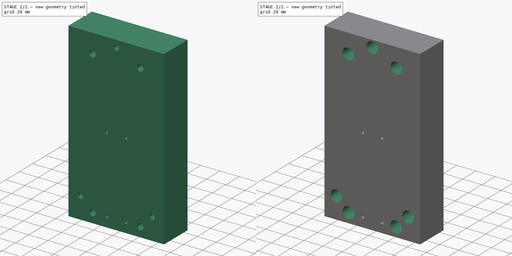
[diagram: build sequence overview — one tinted view per stage of 2, left to right]
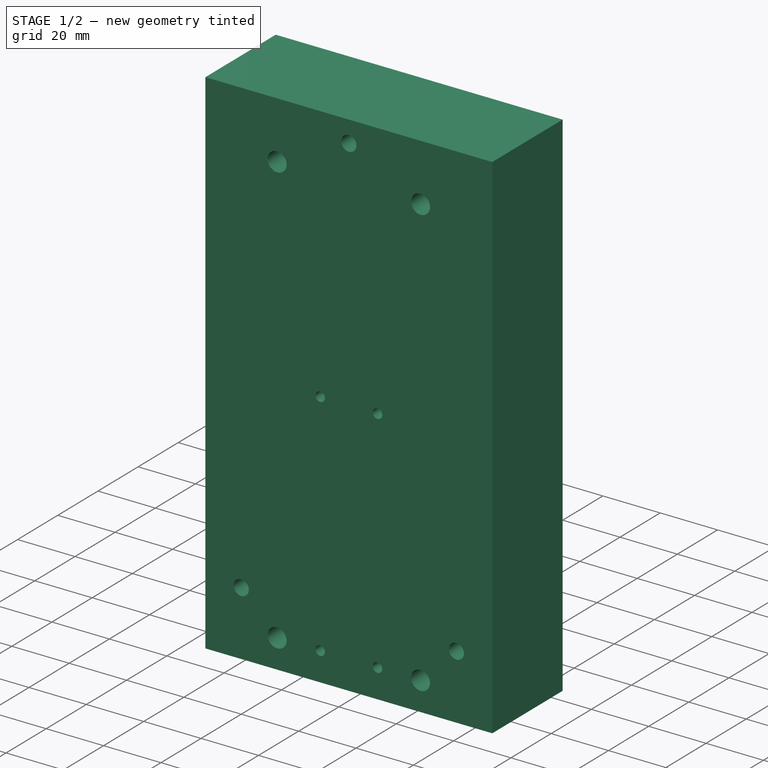
[diagram: stage 1 of 2 — iso view after this stage's code; geometry added in this stage tinted green]
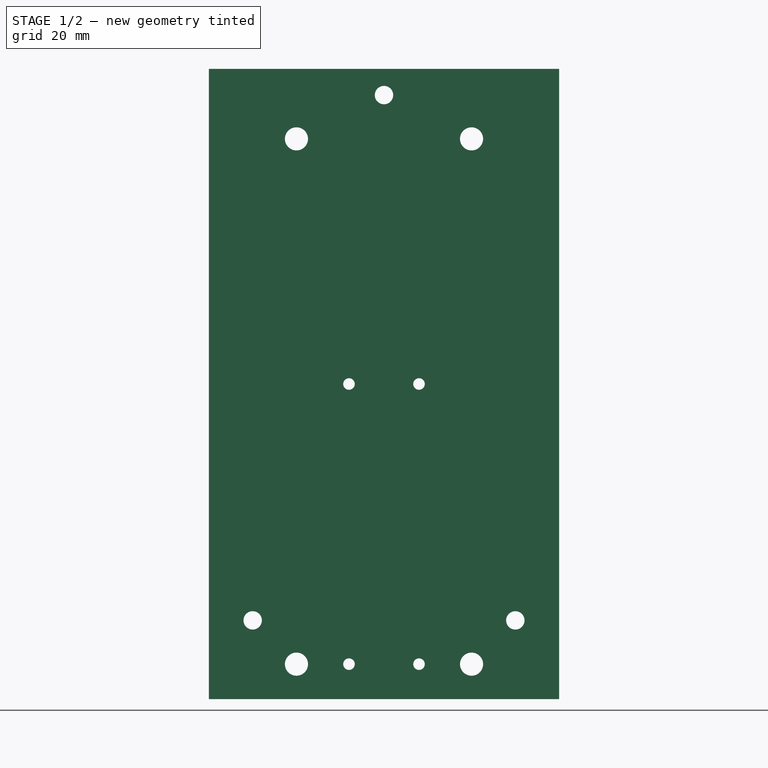
[diagram: stage 1 of 2 — front view after this stage's code; geometry added in this stage tinted green]
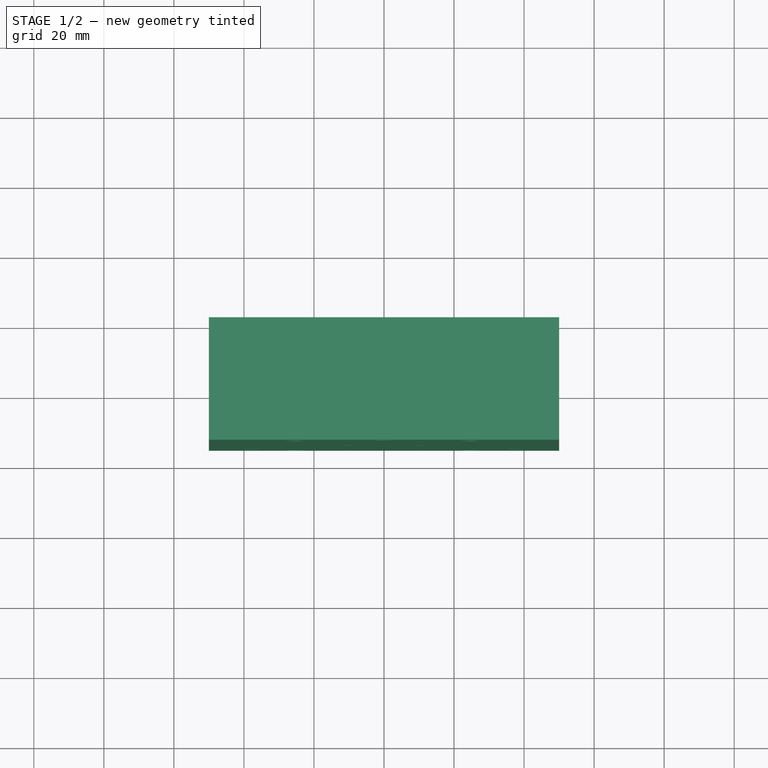
[diagram: stage 1 of 2 — top view after this stage's code; geometry added in this stage tinted green]
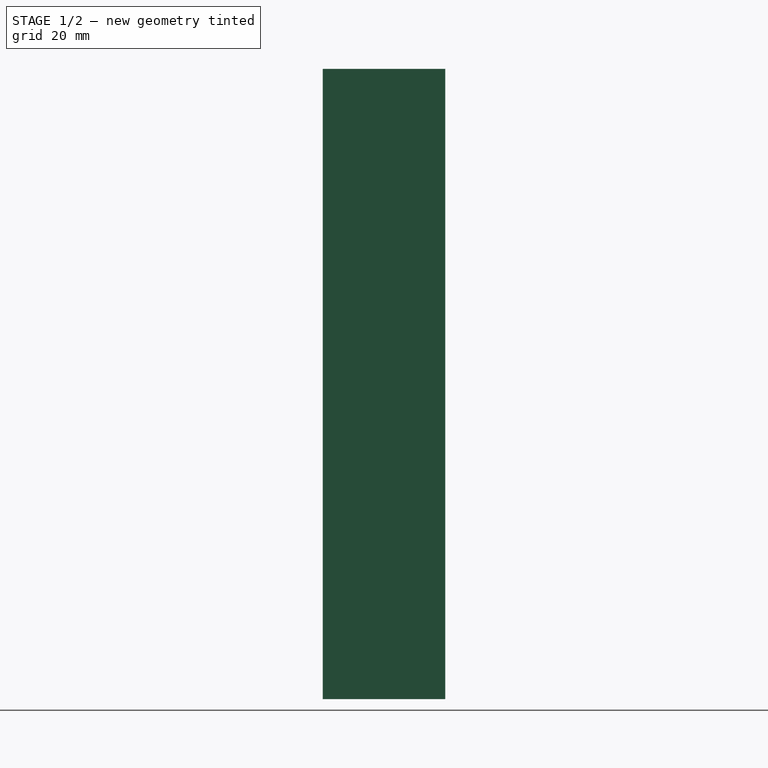
[diagram: stage 1 of 2 — right view after this stage's code; geometry added in this stage tinted green]
FCSTD DOCUMENT  (FreeCAD 0.17R13541 (Git))
Label: heat sink for teem SNG_40F_100
License: All rights reserved
LicenseURL: http://en.wikipedia.org/wiki/All_rights_reserved
objects: Drawing::FeatureViewPython×36, Sketcher::SketchObject×4, Drawing::FeatureViewPart×4, PartDesign::Pocket×3, PartDesign::Pad×1, PartDesign::Body×1, Drawing::FeaturePage×1
note: 13 computed .brp shape members not serialized (recipe doc carries the construction recipe); baked Part::Feature solids carry a one-line shape summary decoded from their .brp

FEATURE [Sketcher::SketchObject] Sketch
  MapMode = 5
  Placement = pos=(0,0,0) rot=(1,0,0;1.5708rad)
  Support = -> [XZ_Plane]
  sketch-geometry (12):
    g0: LineSegment StartX=-50 StartY=90 StartZ=0 EndX=50 EndY=90 EndZ=0
    g1: LineSegment StartX=50 StartY=90 StartZ=0 EndX=50 EndY=-90 EndZ=0
    g2: LineSegment StartX=50 StartY=-90 StartZ=0 EndX=-50 EndY=-90 EndZ=0
    g3: LineSegment StartX=-50 StartY=-90 StartZ=0 EndX=-50 EndY=90 EndZ=0
    g4: LineSegment [constr] StartX=-10 StartY=0 StartZ=0 EndX=10 EndY=0 EndZ=0
    g5: LineSegment [constr] StartX=10 StartY=0 StartZ=0 EndX=10 EndY=-80 EndZ=0
    g6: LineSegment [constr] StartX=10 StartY=-80 StartZ=0 EndX=-10 EndY=-80 EndZ=0
    g7: LineSegment [constr] StartX=-10 StartY=-80 StartZ=0 EndX=-10 EndY=0 EndZ=0
    g8: Circle CenterX=10 CenterY=0 CenterZ=0 NormalX=0 NormalY=0 NormalZ=1 AngleXU=0 Radius=1.65
    g9: Circle CenterX=-10 CenterY=0 CenterZ=0 NormalX=0 NormalY=0 NormalZ=1 AngleXU=0 Radius=1.65
    g10: Circle CenterX=10 CenterY=-80 CenterZ=0 NormalX=0 NormalY=0 NormalZ=1 AngleXU=0 Radius=1.65
    g11: Circle CenterX=-10 CenterY=-80 CenterZ=0 NormalX=0 NormalY=0 NormalZ=1 AngleXU=0 Radius=1.65
  constraints (32):
    c: Coincident(g0,g1)
    c: Coincident(g1,g2)
    c: Coincident(g2,g3)
    c: Coincident(g3,g0)
    c: Horizontal(g0)
    c: Horizontal(g2)
    c: Vertical(g1)
    c: Vertical(g3)
    c: Symmetric(g0,g0,g-2)
    c: Symmetric(g0,g2,g-1)
    c: DistanceY(g3,g3) = 180
    c: DistanceX(g0,g0) = 100
    c: Coincident(g5,g6)
    c: Coincident(g6,g7)
    c: Coincident(g7,g4)
    c: Horizontal(g4)
    c: Horizontal(g6)
    c: Vertical(g7)
    c: DistanceY(g7,g7) = 80
    c: DistanceY(g1,g5) = 10
    c: Radius(g8) = 1.65
    c: Coincident(g8,g4)
    c: Equal(g8,g9) = 2.5
    c: Coincident(g9,g4)
    c: Equal(g8,g10) = 2.5
    c: Coincident(g10,g5)
    c: Coincident(g11,g6)
    c: Equal(g10,g11)
    c: DistanceX(g4,g4) = 20
    c: Vertical(g5)
    c: Coincident(g4,g5)
    c: Symmetric(g4,g4,g-2)
FEATURE [PartDesign::Pad] Pad
  Length = 35
  Length2 = 100
  Placement = pos=(0,0,0) rot=(1,0,0;1.5708rad)
  Profile = -> Sketch
  Type = 0
FEATURE [Sketcher::SketchObject] Sketch001  label="Sketch_M6_throu_hole"
  ExternalGeometry = -> [Pad]
  MapMode = 5
  Placement = pos=(0,-35,0) rot=(1,0,0;1.5708rad)
  Support = -> [Pad]
  sketch-geometry (7):
    g0: Circle CenterX=25 CenterY=-80 CenterZ=0 NormalX=0 NormalY=0 NormalZ=1 AngleXU=0 Radius=3.3
    g1: Circle CenterX=-25 CenterY=-80 CenterZ=0 NormalX=0 NormalY=0 NormalZ=1 AngleXU=0 Radius=3.3
    g2: Circle CenterX=25 CenterY=70 CenterZ=0 NormalX=0 NormalY=0 NormalZ=1 AngleXU=0 Radius=3.3
    g3: Circle CenterX=-25 CenterY=70 CenterZ=0 NormalX=0 NormalY=0 NormalZ=1 AngleXU=0 Radius=3.3
    g4: Circle CenterX=0 CenterY=82.5 CenterZ=0 NormalX=0 NormalY=0 NormalZ=1 AngleXU=0 Radius=2.625
    g5: Circle CenterX=-37.5 CenterY=-67.5 CenterZ=0 NormalX=0 NormalY=0 NormalZ=1 AngleXU=0 Radius=2.625
    g6: Circle CenterX=37.5 CenterY=-67.5 CenterZ=0 NormalX=0 NormalY=0 NormalZ=1 AngleXU=0 Radius=2.625
  constraints (21):
    c: DistanceX(g-1,g0) = 25
    c: Radius(g0) = 3.3
    c: DistanceY(g-3,g0) = 10
    c: DistanceY(g-3,g1) = 10
    c: DistanceX(g1,g-1) = 25
    c: Equal(g0,g2) = 3.5
    c: DistanceY(g0,g2) = 150
    c: DistanceX(g-1,g2) = 25
    c: DistanceY(g1,g3) = 150
    c: DistanceX(g3,g-1) = 25
    c: Equal(g2,g3)
    c: Equal(g1,g0)
    c: PointOnObject(g4,g-2)
    c: Radius(g4) = 2.625
    c: DistanceY(g4,g3) = -12.5
    c: Equal(g4,g5) = 2.625
    c: Equal(g4,g6) = 2.625
    c: DistanceX(g5,g1) = 12.5
    c: DistanceY(g1,g5) = 12.5
    c: DistanceX(g0,g6) = 12.5
    c: DistanceY(g0,g6) = 12.5
FEATURE [PartDesign::Pocket] Pocket
  BaseFeature = -> Pad
  Length = 5
  Length2 = 100
  Placement = pos=(0,0,0) rot=(1,0,0;1.5708rad)
  Profile = -> Sketch001
  Type = 1
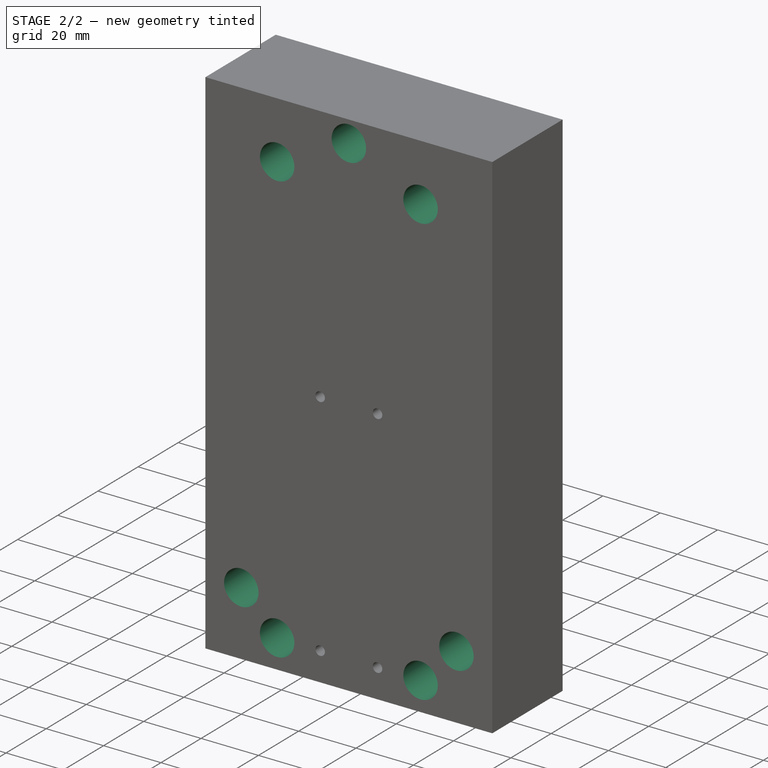
[diagram: stage 2 of 2 — iso view after this stage's code; geometry added in this stage tinted green]
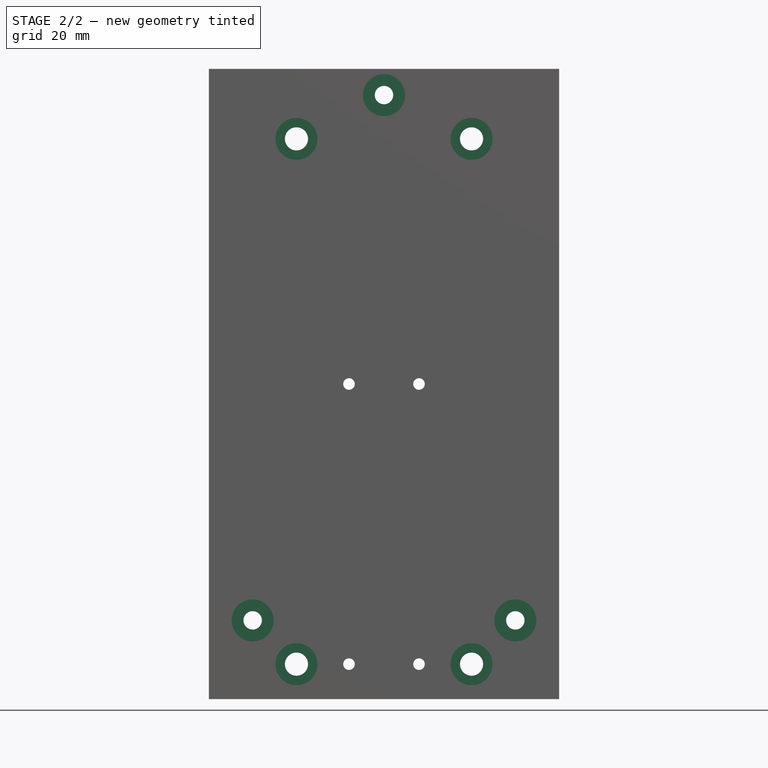
[diagram: stage 2 of 2 — front view after this stage's code; geometry added in this stage tinted green]
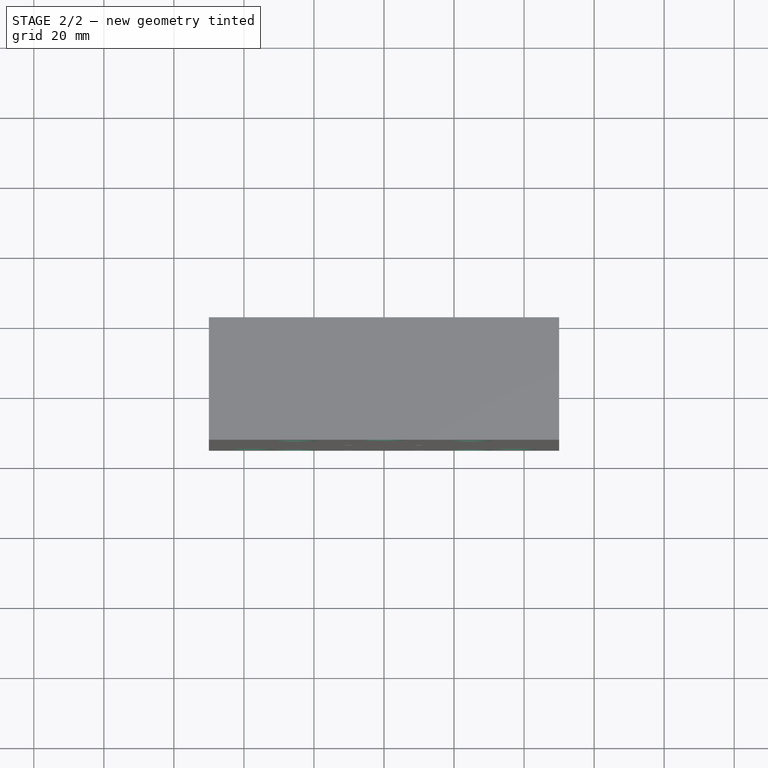
[diagram: stage 2 of 2 — top view after this stage's code; geometry added in this stage tinted green]
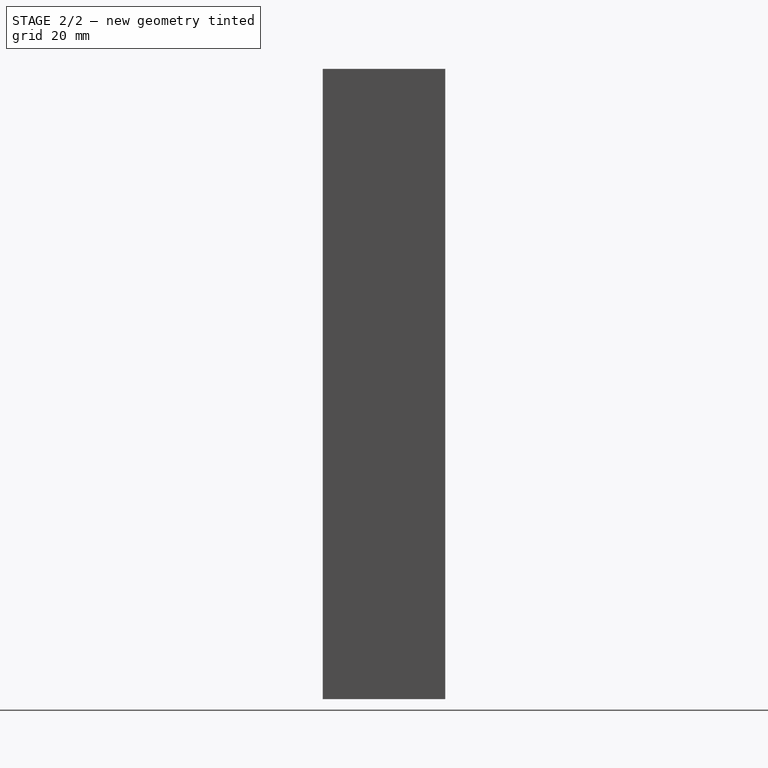
[diagram: stage 2 of 2 — right view after this stage's code; geometry added in this stage tinted green]
FEATURE [Sketcher::SketchObject] Sketch002  label="Sketch_M6_pocket_hole"
  ExternalGeometry = -> [Pocket]
  MapMode = 5
  Placement = pos=(0,-35,0) rot=(1,0,0;1.5708rad)
  Support = -> [Pocket]
  sketch-geometry (7):
    g0: Circle CenterX=25 CenterY=70 CenterZ=0 NormalX=0 NormalY=0 NormalZ=1 AngleXU=0 Radius=6
    g1: Circle CenterX=-25 CenterY=70 CenterZ=0 NormalX=0 NormalY=0 NormalZ=1 AngleXU=0 Radius=6
    g2: Circle CenterX=25 CenterY=-80 CenterZ=0 NormalX=0 NormalY=0 NormalZ=1 AngleXU=0 Radius=6
    g3: Circle CenterX=-25 CenterY=-80 CenterZ=0 NormalX=0 NormalY=0 NormalZ=1 AngleXU=0 Radius=6
    g4: Circle CenterX=-37.5 CenterY=-67.5 CenterZ=0 NormalX=0 NormalY=0 NormalZ=1 AngleXU=0 Radius=6
    g5: Circle CenterX=37.5 CenterY=-67.5 CenterZ=0 NormalX=0 NormalY=0 NormalZ=1 AngleXU=0 Radius=6
    g6: Circle CenterX=0 CenterY=82.5 CenterZ=0 NormalX=0 NormalY=0 NormalZ=1 AngleXU=0 Radius=6
  constraints (14):
    c: Radius(g0) = 6
    c: Equal(g0,g1)
    c: Equal(g1,g2)
    c: Equal(g2,g3)
    c: Coincident(g0,g-6)
    c: Coincident(g1,g-7)
    c: Coincident(g2,g-8)
    c: Equal(g0,g4) = 6
    c: Coincident(g4,g-5)
    c: Equal(g0,g5) = 6
    c: Coincident(g5,g-10)
    c: Equal(g0,g6) = 6
    c: Coincident(g6,g-9)
    c: Coincident(g3,g-4)
FEATURE [PartDesign::Pocket] Pocket001
  BaseFeature = -> Pocket
  Length = 25
  Length2 = 100
  Placement = pos=(0,0,0) rot=(1,0,0;1.5708rad)
  Profile = -> Sketch002
  Type = 0
FEATURE [Sketcher::SketchObject] Sketch003  label="Sketch_M3_pocket_hole"
  ExternalGeometry = -> [Pocket001]
  MapMode = 5
  Placement = pos=(0,0,0) rot=(-1,0,0;1.5708rad)
  Support = -> [Pocket001]
  sketch-geometry (4):
    g0: Circle CenterX=-10 CenterY=80 CenterZ=0 NormalX=0 NormalY=0 NormalZ=1 AngleXU=0 Radius=3
    g1: Circle CenterX=10 CenterY=80 CenterZ=0 NormalX=0 NormalY=0 NormalZ=1 AngleXU=0 Radius=3
    g2: Circle CenterX=-10 CenterY=0 CenterZ=0 NormalX=0 NormalY=0 NormalZ=1 AngleXU=0 Radius=3
    g3: Circle CenterX=10 CenterY=0 CenterZ=0 NormalX=0 NormalY=0 NormalZ=1 AngleXU=0 Radius=3
  constraints (8):
    c: Coincident(g0,g-4)
    c: Radius(g0) = 3
    c: Equal(g0,g1) = 3
    c: Coincident(g1,g-3)
    c: Equal(g0,g2) = 3
    c: Coincident(g2,g-5)
    c: Equal(g0,g3) = 3
    c: Coincident(g3,g-6)
FEATURE [PartDesign::Pocket] Pocket002
  BaseFeature = -> Pocket001
  Length = 25
  Length2 = 100
  Placement = pos=(0,0,0) rot=(1,0,0;1.5708rad)
  Profile = -> Sketch003
  Type = 0
FEATURE [PartDesign::Body] Body
  Group = -> [Sketch,Pad,Sketch001,Pocket,Sketch002,Pocket001,Sketch003,Pocket002]
  Origin = -> Origin
  Tip = -> Pocket002
FEATURE [Drawing::FeatureViewPart] Ortho  label="Ortho_0_0"
  Direction = (0,1,0)
  HiddenWidth = 0.15
  LineWidth = 0.35
  Rotation = 180
  ShowHiddenLines = true
  ShowSmoothLines = true
  Source = -> Pocket002
  Tolerance = 0.05
  ViewResult = <blob: 2541 chars omitted>
  Visible = true
  X = 161.667
  Y = 149.667
FEATURE [Drawing::FeatureViewPart] Ortho001  label="Ortho_0_1"
  Direction = (1,0,0)
  HiddenWidth = 0.15
  LineWidth = 0.35
  Rotation = 180
  ShowHiddenLines = true
  ShowSmoothLines = true
  Source = -> Pocket002
  Tolerance = 0.05
  ViewResult = <blob: 44102 chars omitted>
  Visible = true
  X = 161.667
  Y = 37.3333
FEATURE [Drawing::FeatureViewPart] Ortho002  label="Ortho_1_0"
  Direction = (0,0,1)
  HiddenWidth = 0.15
  LineWidth = 0.35
  Rotation = 90
  ShowHiddenLines = true
  ShowSmoothLines = true
  Source = -> Pocket002
  Tolerance = 0.05
  ViewResult = <blob: 25377 chars omitted>
  Visible = true
  X = 348.333
  Y = 149.667
FEATURE [Drawing::FeatureViewPart] Ortho003  label="Ortho_1_1"
  Direction = (0.57735,-0.57735,-0.57735)
  HiddenWidth = 0.15
  LineWidth = 0.35
  Rotation = 180
  Scale = 0.5
  ShowHiddenLines = true
  ShowSmoothLines = true
  Source = -> Pocket002
  Tolerance = 0.05
  ViewResult = <blob: 13440 chars omitted>
  Visible = true
  X = 330.833
  Y = 61.9777
FEATURE [Drawing::FeatureViewPython] dim001  # drawing view (typed FeaturePython)
  Rotation = 0
  ViewResult = <g> \n  <line x1="71.667000" y1="201.667000" x2="71.667000" y2="212.733918" style="stroke:rgb(0,0,255);stroke-width:0.50" />\n<line x1="251.667000" y1="201.667000" x2="251.667000" y2="212.733918" style="stroke:rgb(0,0,255);stroke-width:0.50" />\n<line x1="71.667000" y1="211.733918" x2="251.667000" y2="211.733918" style="stroke:rgb(0,0,255);stroke-width:0.50" /> \n  <polygon points="251.667000,211.733918 248.667000,210.733918 247.667000,211.733918 248.667000,212.733918" style="fill:rgb(0,0,255);stroke:rgb(0,0,255);stroke-width:0" /><polygon points="71.667000,211.733918 74.667000,212.733918 75.667000,211.733918 74.667000,210.733918" style="fill:rgb(0,0,255);stroke:rgb(0,0,255);stroke-width:0" /> \n  <text x="161.667000" y="209.733918" font-family="inherit" font-size="3.6" fill="rgb(0,0,255)" text-anchor="middle" transform="rotate(0.000000 161.667000,209.733918)" >180</text> </g>
  Visible = true
  X = 0
  Y = 0
  arrowL1 = 3
  arrowL2 = 1
  arrowW = 2
  arrow_scheme = 0
  autoPlaceOffset = 2
  autoPlaceText = true
  click1_x = 248.93
  click1_y = 211.734
  click2_x = 248.93
  click2_y = 211.734
  comma_decimal_place = false
  dimension_line_overshoot = 1
  gap_datum_points = 2
  halfDimension_linear = false
  lineColor = rgb(0,0,255)
  strokeWidth = 0.5
  textFormat_linear = %(value)3.3f
  textRenderer_color = rgb(0,0,255)
  textRenderer_family = inherit
  textRenderer_size = 3.6
  unit_custom_scale = 1
  unit_scheme = 0
FEATURE [Drawing::FeatureViewPython] dim003  # drawing view (typed FeaturePython)
  Rotation = 0
  ViewResult = <g> \n  <line x1="239.667000" y1="139.667000" x2="145.929099" y2="139.667000" style="stroke:rgb(0,0,255);stroke-width:0.50" />\n<line x1="239.667000" y1="159.667000" x2="145.929099" y2="159.667000" style="stroke:rgb(0,0,255);stroke-width:0.50" />\n<line x1="146.929099" y1="139.667000" x2="146.929099" y2="159.667000" style="stroke:rgb(0,0,255);stroke-width:0.50" /> \n  <polygon points="146.929099,159.667000 147.929099,156.667000 146.929099,155.667000 145.929099,156.667000" style="fill:rgb(0,0,255);stroke:rgb(0,0,255);stroke-width:0" /><polygon points="146.929099,139.667000 145.929099,142.667000 146.929099,143.667000 147.929099,142.667000" style="fill:rgb(0,0,255);stroke:rgb(0,0,255);stroke-width:0" /> \n  <text x="144.929099" y="149.667000" font-family="inherit" font-size="3.6" fill="rgb(0,0,255)" text-anchor="middle" transform="rotate(-90.000000 144.929099,149.667000)" >20</text> </g>
  Visible = true
  X = 0
  Y = 0
  arrowL1 = 3
  arrowL2 = 1
  arrowW = 2
  arrow_scheme = 0
  autoPlaceOffset = 2
  autoPlaceText = true
  click1_x = 146.929
  click1_y = 151.72
  click2_x = 146.929
  click2_y = 151.72
  comma_decimal_place = false
  dimension_line_overshoot = 1
  gap_datum_points = 2
  halfDimension_linear = false
  lineColor = rgb(0,0,255)
  strokeWidth = 0.5
  textFormat_linear = %(value)3.3f
  textRenderer_color = rgb(0,0,255)
  textRenderer_family = inherit
  textRenderer_size = 3.6
  unit_custom_scale = 1
  unit_scheme = 0
FEATURE [Drawing::FeatureViewPython] dim004  # drawing view (typed FeaturePython)
  Rotation = 0
  ViewResult = <g> \n  <line x1="161.667000" y1="157.667000" x2="161.667000" y2="131.882009" style="stroke:rgb(0,0,255);stroke-width:0.50" />\n<line x1="241.667000" y1="157.667000" x2="241.667000" y2="131.882009" style="stroke:rgb(0,0,255);stroke-width:0.50" />\n<line x1="161.667000" y1="132.882009" x2="241.667000" y2="132.882009" style="stroke:rgb(0,0,255);stroke-width:0.50" /> \n  <polygon points="241.667000,132.882009 238.667000,131.882009 237.667000,132.882009 238.667000,133.882009" style="fill:rgb(0,0,255);stroke:rgb(0,0,255);stroke-width:0" /><polygon points="161.667000,132.882009 164.667000,133.882009 165.667000,132.882009 164.667000,131.882009" style="fill:rgb(0,0,255);stroke:rgb(0,0,255);stroke-width:0" /> \n  <text x="201.667000" y="130.882009" font-family="inherit" font-size="3.6" fill="rgb(0,0,255)" text-anchor="middle" transform="rotate(0.000000 201.667000,130.882009)" >80</text> </g>
  Visible = true
  X = 0
  Y = 0
  arrowL1 = 3
  arrowL2 = 1
  arrowW = 2
  arrow_scheme = 0
  autoPlaceOffset = 2
  autoPlaceText = true
  click1_x = 241.128
  click1_y = 132.882
  click2_x = 241.128
  click2_y = 132.882
  comma_decimal_place = false
  dimension_line_overshoot = 1
  gap_datum_points = 2
  halfDimension_linear = false
  lineColor = rgb(0,0,255)
  strokeWidth = 0.5
  textFormat_linear = %(value)3.3f
  textRenderer_color = rgb(0,0,255)
  textRenderer_family = inherit
  textRenderer_size = 3.6
  unit_custom_scale = 1
  unit_scheme = 0
FEATURE [Drawing::FeatureViewPython] dia001  # drawing view (typed FeaturePython)
  Rotation = 0
  ViewResult = <g>  <circle cx ="161.667000" cy ="159.667000" r="0.250000" stroke="none" fill="rgb(0,0,255)" /> \n<line x1="171.843164" y1="170.884930" x2="159.651364" y2="157.445017" style="stroke:rgb(0,0,255);stroke-width:0.50" />\n<polygon points="163.682636,161.888983 164.957611,164.782846 166.370151,164.851628 166.438934,163.439088" style="fill:rgb(0,0,255);stroke:rgb(0,0,255);stroke-width:0" />\n<polygon points="159.651364,157.445017 158.376389,154.551154 156.963849,154.482372 156.895066,155.894912" style="fill:rgb(0,0,255);stroke:rgb(0,0,255);stroke-width:0" />\n<line x1="171.843164" y1="170.884930" x2="205.221622" y2="170.884930" style="stroke:rgb(0,0,255);stroke-width:0.50" />\n<text x="188.532393" y="168.884930" font-family="inherit" font-size="3.6" fill="rgb(0,0,255)" text-anchor="middle" transform="rotate(0.000000 188.532393,168.884930)" >M3通孔x4,反面下沉 25mm</text> </g>
  Visible = true
  X = 0
  Y = 0
  arrowL1 = 3
  arrowL2 = 1
  arrowW = 2
  arrow_scheme = 0
  autoPlaceOffset = 2
  autoPlaceText = true
  centerPointDia = 0.5
  click1_x = 171.843
  click1_y = 170.885
  click2_x = 205.222
  click2_y = 172.163
  click3_x = 205.222
  click3_y = 172.163
  comma_decimal_place = false
  lineColor = rgb(0,0,255)
  strokeWidth = 0.5
  textFormat_circular = M3通孔x4,反面下沉 25mm
  textRenderer_color = rgb(0,0,255)
  textRenderer_family = inherit
  textRenderer_size = 3.6
  unit_custom_scale = 1
  unit_scheme = 0
FEATURE [Drawing::FeatureViewPython] dim005  # drawing view (typed FeaturePython)
  Rotation = 0
  ViewResult = <g> \n  <line x1="241.667000" y1="141.667000" x2="241.667000" y2="160.721125" style="stroke:rgb(0,0,255);stroke-width:0.50" />\n<line x1="251.667000" y1="101.667000" x2="251.667000" y2="160.721125" style="stroke:rgb(0,0,255);stroke-width:0.50" />\n<line x1="241.667000" y1="159.721125" x2="251.667000" y2="159.721125" style="stroke:rgb(0,0,255);stroke-width:0.50" /> \n  <polygon points="251.667000,159.721125 254.667000,160.721125 255.667000,159.721125 254.667000,158.721125" style="fill:rgb(0,0,255);stroke:rgb(0,0,255);stroke-width:0" /><polygon points="241.667000,159.721125 238.667000,158.721125 237.667000,159.721125 238.667000,160.721125" style="fill:rgb(0,0,255);stroke:rgb(0,0,255);stroke-width:0" /> \n  <text x="246.667000" y="157.721125" font-family="inherit" font-size="3.6" fill="rgb(0,0,255)" text-anchor="middle" transform="rotate(0.000000 246.667000,157.721125)" >10</text> </g>
  Visible = true
  X = 0
  Y = 0
  arrowL1 = 3
  arrowL2 = 1
  arrowW = 2
  arrow_scheme = 0
  autoPlaceOffset = 2
  autoPlaceText = true
  click1_x = 244.872
  click1_y = 159.721
  click2_x = 244.872
  click2_y = 159.721
  comma_decimal_place = false
  dimension_line_overshoot = 1
  gap_datum_points = 2
  halfDimension_linear = false
  lineColor = rgb(0,0,255)
  strokeWidth = 0.5
  textFormat_linear = %(value)3.3f
  textRenderer_color = rgb(0,0,255)
  textRenderer_family = inherit
  textRenderer_size = 3.6
  unit_custom_scale = 1
  unit_scheme = 0
FEATURE [Drawing::FeatureViewPython] dim007  # drawing view (typed FeaturePython)
  Rotation = 0
  ViewResult = <g> \n  <line x1="69.667000" y1="37.333300" x2="54.625083" y2="37.333300" style="stroke:rgb(0,0,255);stroke-width:0.50" />\n<line x1="71.167000" y1="72.333300" x2="54.625083" y2="72.333300" style="stroke:rgb(0,0,255);stroke-width:0.50" />\n<line x1="55.625083" y1="37.333300" x2="55.625083" y2="72.333300" style="stroke:rgb(0,0,255);stroke-width:0.50" /> \n  <polygon points="55.625083,72.333300 56.625083,69.333300 55.625083,68.333300 54.625083,69.333300" style="fill:rgb(0,0,255);stroke:rgb(0,0,255);stroke-width:0" /><polygon points="55.625083,37.333300 54.625083,40.333300 55.625083,41.333300 56.625083,40.333300" style="fill:rgb(0,0,255);stroke:rgb(0,0,255);stroke-width:0" /> \n  <text x="53.625083" y="54.833300" font-family="inherit" font-size="3.6" fill="rgb(0,0,255)" text-anchor="middle" transform="rotate(-90.000000 53.625083,54.833300)" >35</text> </g>
  Visible = true
  X = 0
  Y = 0
  arrowL1 = 3
  arrowL2 = 1
  arrowW = 2
  arrow_scheme = 0
  autoPlaceOffset = 2
  autoPlaceText = true
  click1_x = 55.6251
  click1_y = 68.0462
  click2_x = 55.6251
  click2_y = 68.0462
  comma_decimal_place = false
  dimension_line_overshoot = 1
  gap_datum_points = 2
  halfDimension_linear = false
  lineColor = rgb(0,0,255)
  strokeWidth = 0.5
  textFormat_linear = %(value)3.3f
  textRenderer_color = rgb(0,0,255)
  textRenderer_family = inherit
  textRenderer_size = 3.6
  unit_custom_scale = 1
  unit_scheme = 0
FEATURE [Drawing::FeatureViewPython] dim008  # drawing view (typed FeaturePython)
  Rotation = 0
  ViewResult = <g> \n  <line x1="239.667000" y1="124.667000" x2="59.086652" y2="124.667000" style="stroke:rgb(0,0,255);stroke-width:0.50" />\n<line x1="239.667000" y1="174.667000" x2="59.086652" y2="174.667000" style="stroke:rgb(0,0,255);stroke-width:0.50" />\n<line x1="60.086652" y1="124.667000" x2="60.086652" y2="174.667000" style="stroke:rgb(0,0,255);stroke-width:0.50" /> \n  <polygon points="60.086652,174.667000 61.086652,171.667000 60.086652,170.667000 59.086652,171.667000" style="fill:rgb(0,0,255);stroke:rgb(0,0,255);stroke-width:0" /><polygon points="60.086652,124.667000 59.086652,127.667000 60.086652,128.667000 61.086652,127.667000" style="fill:rgb(0,0,255);stroke:rgb(0,0,255);stroke-width:0" /> \n  <text x="58.086652" y="149.667000" font-family="inherit" font-size="3.6" fill="rgb(0,0,255)" text-anchor="middle" transform="rotate(-90.000000 58.086652,149.667000)" >50</text> </g>
  Visible = true
  X = 0
  Y = 0
  arrowL1 = 3
  arrowL2 = 1
  arrowW = 2
  arrow_scheme = 0
  autoPlaceOffset = 2
  autoPlaceText = true
  click1_x = 60.0867
  click1_y = 168.338
  click2_x = 60.0867
  click2_y = 168.338
  comma_decimal_place = false
  dimension_line_overshoot = 1
  gap_datum_points = 2
  halfDimension_linear = false
  lineColor = rgb(0,0,255)
  strokeWidth = 0.5
  textFormat_linear = %(value)3.3f
  textRenderer_color = rgb(0,0,255)
  textRenderer_family = inherit
  textRenderer_size = 3.6
  unit_custom_scale = 1
  unit_scheme = 0
FEATURE [Drawing::FeatureViewPython] dim009  # drawing view (typed FeaturePython)
  Rotation = 0
  ViewResult = <g> \n  <line x1="91.667000" y1="172.667000" x2="91.667000" y2="103.869047" style="stroke:rgb(0,0,255);stroke-width:0.50" />\n<line x1="241.667000" y1="172.667000" x2="241.667000" y2="103.869047" style="stroke:rgb(0,0,255);stroke-width:0.50" />\n<line x1="91.667000" y1="104.869047" x2="241.667000" y2="104.869047" style="stroke:rgb(0,0,255);stroke-width:0.50" /> \n  <polygon points="241.667000,104.869047 238.667000,103.869047 237.667000,104.869047 238.667000,105.869047" style="fill:rgb(0,0,255);stroke:rgb(0,0,255);stroke-width:0" /><polygon points="91.667000,104.869047 94.667000,105.869047 95.667000,104.869047 94.667000,103.869047" style="fill:rgb(0,0,255);stroke:rgb(0,0,255);stroke-width:0" /> \n  <text x="166.667000" y="102.869047" font-family="inherit" font-size="3.6" fill="rgb(0,0,255)" text-anchor="middle" transform="rotate(0.000000 166.667000,102.869047)" >150</text> </g>
  Visible = true
  X = 0
  Y = 0
  arrowL1 = 3
  arrowL2 = 1
  arrowW = 2
  arrow_scheme = 0
  autoPlaceOffset = 2
  autoPlaceText = true
  click1_x = 237.611
  click1_y = 104.869
  click2_x = 237.611
  click2_y = 104.869
  comma_decimal_place = false
  dimension_line_overshoot = 1
  gap_datum_points = 2
  halfDimension_linear = false
  lineColor = rgb(0,0,255)
  strokeWidth = 0.5
  textFormat_linear = %(value)3.3f
  textRenderer_color = rgb(0,0,255)
  textRenderer_family = inherit
  textRenderer_size = 3.6
  unit_custom_scale = 1
  unit_scheme = 0
FEATURE [Drawing::FeatureViewPython] dia002  # drawing view (typed FeaturePython)
  Rotation = 0
  ViewResult = <g>  <circle cx ="91.667000" cy ="174.667000" r="0.250000" stroke="none" fill="rgb(0,0,255)" /> \n<line x1="99.073653" y1="185.176660" x2="88.210618" y2="169.762571" style="stroke:rgb(0,0,255);stroke-width:0.50" />\n<polygon points="95.123382,179.571429 94.212596,176.543151 92.819127,176.301810 92.577786,177.695278" style="fill:rgb(0,0,255);stroke:rgb(0,0,255);stroke-width:0" />\n<polygon points="88.210618,169.762571 89.121404,172.790849 90.514873,173.032190 90.756214,171.638722" style="fill:rgb(0,0,255);stroke:rgb(0,0,255);stroke-width:0" />\n<line x1="99.073653" y1="185.176660" x2="177.173496" y2="185.176660" style="stroke:rgb(0,0,255);stroke-width:0.50" />\n<text x="138.123574" y="183.176660" font-family="inherit" font-size="3.6" fill="rgb(0,0,255)" text-anchor="middle" transform="rotate(0.000000 138.123574,183.176660)" >M6通孔x4,正面下沉25mm</text> </g>
  Visible = true
  X = 0
  Y = 0
  arrowL1 = 3
  arrowL2 = 1
  arrowW = 2
  arrow_scheme = 0
  autoPlaceOffset = 2
  autoPlaceText = true
  centerPointDia = 0.5
  click1_x = 99.0737
  click1_y = 185.177
  click2_x = 177.173
  click2_y = 184.349
  click3_x = 177.173
  click3_y = 184.349
  comma_decimal_place = false
  lineColor = rgb(0,0,255)
  strokeWidth = 0.5
  textFormat_circular = M6通孔x4,正面下沉25mm
  textRenderer_color = rgb(0,0,255)
  textRenderer_family = inherit
  textRenderer_size = 3.6
  unit_custom_scale = 1
  unit_scheme = 0
FEATURE [Drawing::FeatureViewPython] dim010  # drawing view (typed FeaturePython)
  Rotation = 0
  ViewResult = <g> \n  <line x1="243.667000" y1="174.667000" x2="258.836060" y2="174.667000" style="stroke:rgb(0,0,255);stroke-width:0.50" />\n<line x1="253.667000" y1="199.667000" x2="258.836060" y2="199.667000" style="stroke:rgb(0,0,255);stroke-width:0.50" />\n<line x1="257.836060" y1="174.667000" x2="257.836060" y2="199.667000" style="stroke:rgb(0,0,255);stroke-width:0.50" /> \n  <polygon points="257.836060,199.667000 258.836060,196.667000 257.836060,195.667000 256.836060,196.667000" style="fill:rgb(0,0,255);stroke:rgb(0,0,255);stroke-width:0" /><polygon points="257.836060,174.667000 256.836060,177.667000 257.836060,178.667000 258.836060,177.667000" style="fill:rgb(0,0,255);stroke:rgb(0,0,255);stroke-width:0" /> \n  <text x="255.836060" y="187.167000" font-family="inherit" font-size="3.6" fill="rgb(0,0,255)" text-anchor="middle" transform="rotate(-90.000000 255.836060,187.167000)" >25</text> </g>
  Visible = true
  X = 0
  Y = 0
  arrowL1 = 3
  arrowL2 = 1
  arrowW = 2
  arrow_scheme = 0
  autoPlaceOffset = 2
  autoPlaceText = true
  click1_x = 257.836
  click1_y = 190.122
  click2_x = 257.836
  click2_y = 190.122
  comma_decimal_place = false
  dimension_line_overshoot = 1
  gap_datum_points = 2
  halfDimension_linear = false
  lineColor = rgb(0,0,255)
  strokeWidth = 0.5
  textFormat_linear = %(value)3.3f
  textRenderer_color = rgb(0,0,255)
  textRenderer_family = inherit
  textRenderer_size = 3.6
  unit_custom_scale = 1
  unit_scheme = 0
FEATURE [Drawing::FeatureViewPython] dim011  # drawing view (typed FeaturePython)
  Rotation = 0
  ViewResult = <g> \n  <line x1="77.167000" y1="149.667000" x2="66.974961" y2="149.667000" style="stroke:rgb(0,0,255);stroke-width:0.50" />\n<line x1="89.667000" y1="174.667000" x2="66.974961" y2="174.667000" style="stroke:rgb(0,0,255);stroke-width:0.50" />\n<line x1="67.974961" y1="149.667000" x2="67.974961" y2="174.667000" style="stroke:rgb(0,0,255);stroke-width:0.50" /> \n  <polygon points="67.974961,174.667000 68.974961,171.667000 67.974961,170.667000 66.974961,171.667000" style="fill:rgb(0,0,255);stroke:rgb(0,0,255);stroke-width:0" /><polygon points="67.974961,149.667000 66.974961,152.667000 67.974961,153.667000 68.974961,152.667000" style="fill:rgb(0,0,255);stroke:rgb(0,0,255);stroke-width:0" /> \n  <text x="65.974961" y="162.167000" font-family="inherit" font-size="3.6" fill="rgb(0,0,255)" text-anchor="middle" transform="rotate(-90.000000 65.974961,162.167000)" >25</text> </g>
  Visible = true
  X = 0
  Y = 0
  arrowL1 = 3
  arrowL2 = 1
  arrowW = 2
  arrow_scheme = 0
  autoPlaceOffset = 2
  autoPlaceText = true
  click1_x = 67.975
  click1_y = 170.849
  click2_x = 67.975
  click2_y = 170.849
  comma_decimal_place = false
  dimension_line_overshoot = 1
  gap_datum_points = 2
  halfDimension_linear = false
  lineColor = rgb(0,0,255)
  strokeWidth = 0.5
  textFormat_linear = %(value)3.3f
  textRenderer_color = rgb(0,0,255)
  textRenderer_family = inherit
  textRenderer_size = 3.6
  unit_custom_scale = 1
  unit_scheme = 0
FEATURE [Drawing::FeatureViewPython] dim012  # drawing view (typed FeaturePython)
  Rotation = 0
  ViewResult = <g> \n  <line x1="79.167000" y1="151.667000" x2="79.167000" y2="163.775291" style="stroke:rgb(0,0,255);stroke-width:0.50" />\n<line x1="91.667000" y1="172.667000" x2="91.667000" y2="161.775291" style="stroke:rgb(0,0,255);stroke-width:0.50" />\n<line x1="79.167000" y1="162.775291" x2="91.667000" y2="162.775291" style="stroke:rgb(0,0,255);stroke-width:0.50" /> \n  <polygon points="91.667000,162.775291 88.667000,161.775291 87.667000,162.775291 88.667000,163.775291" style="fill:rgb(0,0,255);stroke:rgb(0,0,255);stroke-width:0" /><polygon points="79.167000,162.775291 82.167000,163.775291 83.167000,162.775291 82.167000,161.775291" style="fill:rgb(0,0,255);stroke:rgb(0,0,255);stroke-width:0" /> \n  <text x="85.417000" y="160.775291" font-family="inherit" font-size="3.6" fill="rgb(0,0,255)" text-anchor="middle" transform="rotate(0.000000 85.417000,160.775291)" >12.5</text> </g>
  Visible = true
  X = 0
  Y = 0
  arrowL1 = 3
  arrowL2 = 1
  arrowW = 2
  arrow_scheme = 0
  autoPlaceOffset = 2
  autoPlaceText = true
  click1_x = 90.8937
  click1_y = 162.775
  click2_x = 90.8937
  click2_y = 162.775
  comma_decimal_place = false
  dimension_line_overshoot = 1
  gap_datum_points = 2
  halfDimension_linear = false
  lineColor = rgb(0,0,255)
  strokeWidth = 0.5
  textFormat_linear = %(value)3.3f
  textRenderer_color = rgb(0,0,255)
  textRenderer_family = inherit
  textRenderer_size = 3.6
  unit_custom_scale = 1
  unit_scheme = 0
FEATURE [Drawing::FeatureViewPython] dim013  # drawing view (typed FeaturePython)
  Rotation = 0
  ViewResult = <g> \n  <line x1="239.667000" y1="124.667000" x2="215.426026" y2="124.667000" style="stroke:rgb(0,0,255);stroke-width:0.50" />\n<line x1="227.167000" y1="112.167000" x2="215.426026" y2="112.167000" style="stroke:rgb(0,0,255);stroke-width:0.50" />\n<line x1="216.426026" y1="124.667000" x2="216.426026" y2="112.167000" style="stroke:rgb(0,0,255);stroke-width:0.50" /> \n  <polygon points="216.426026,112.167000 215.426026,115.167000 216.426026,116.167000 217.426026,115.167000" style="fill:rgb(0,0,255);stroke:rgb(0,0,255);stroke-width:0" /><polygon points="216.426026,124.667000 217.426026,121.667000 216.426026,120.667000 215.426026,121.667000" style="fill:rgb(0,0,255);stroke:rgb(0,0,255);stroke-width:0" /> \n  <text x="214.426026" y="118.417000" font-family="inherit" font-size="3.6" fill="rgb(0,0,255)" text-anchor="middle" transform="rotate(-90.000000 214.426026,118.417000)" >12.5</text> </g>
  Visible = true
  X = 0
  Y = 0
  arrowL1 = 3
  arrowL2 = 1
  arrowW = 2
  arrow_scheme = 0
  autoPlaceOffset = 2
  autoPlaceText = true
  click1_x = 216.426
  click1_y = 122.667
  click2_x = 216.426
  click2_y = 122.667
  comma_decimal_place = false
  dimension_line_overshoot = 1
  gap_datum_points = 2
  halfDimension_linear = false
  lineColor = rgb(0,0,255)
  strokeWidth = 0.5
  textFormat_linear = %(value)3.3f
  textRenderer_color = rgb(0,0,255)
  textRenderer_family = inherit
  textRenderer_size = 3.6
  unit_custom_scale = 1
  unit_scheme = 0
FEATURE [Drawing::FeatureViewPython] dim014  # drawing view (typed FeaturePython)
  Rotation = 0
  ViewResult = <g> \n  <line x1="229.167000" y1="114.167000" x2="229.167000" y2="122.625697" style="stroke:rgb(0,0,255);stroke-width:0.50" />\n<line x1="241.667000" y1="122.667000" x2="241.667000" y2="120.625697" style="stroke:rgb(0,0,255);stroke-width:0.50" />\n<line x1="229.167000" y1="121.625697" x2="241.667000" y2="121.625697" style="stroke:rgb(0,0,255);stroke-width:0.50" /> \n  <polygon points="241.667000,121.625697 238.667000,120.625697 237.667000,121.625697 238.667000,122.625697" style="fill:rgb(0,0,255);stroke:rgb(0,0,255);stroke-width:0" /><polygon points="229.167000,121.625697 232.167000,122.625697 233.167000,121.625697 232.167000,120.625697" style="fill:rgb(0,0,255);stroke:rgb(0,0,255);stroke-width:0" /> \n  <text x="235.417000" y="119.625697" font-family="inherit" font-size="3.6" fill="rgb(0,0,255)" text-anchor="middle" transform="rotate(0.000000 235.417000,119.625697)" >12.5</text> </g>
  Visible = true
  X = 0
  Y = 0
  arrowL1 = 3
  arrowL2 = 1
  arrowW = 2
  arrow_scheme = 0
  autoPlaceOffset = 2
  autoPlaceText = true
  click1_x = 231.271
  click1_y = 121.626
  click2_x = 231.271
  click2_y = 121.626
  comma_decimal_place = false
  dimension_line_overshoot = 1
  gap_datum_points = 2
  halfDimension_linear = false
  lineColor = rgb(0,0,255)
  strokeWidth = 0.5
  textFormat_linear = %(value)3.3f
  textRenderer_color = rgb(0,0,255)
  textRenderer_family = inherit
  textRenderer_size = 3.6
  unit_custom_scale = 1
  unit_scheme = 0
FEATURE [Drawing::FeatureViewPython] dim015  # drawing view (typed FeaturePython)
  Rotation = 0
  ViewResult = <g> \n  <line x1="241.667000" y1="176.667000" x2="241.667000" y2="196.069908" style="stroke:rgb(0,0,255);stroke-width:0.50" />\n<line x1="229.167000" y1="189.167000" x2="229.167000" y2="196.069908" style="stroke:rgb(0,0,255);stroke-width:0.50" />\n<line x1="241.667000" y1="195.069908" x2="229.167000" y2="195.069908" style="stroke:rgb(0,0,255);stroke-width:0.50" /> \n  <polygon points="229.167000,195.069908 232.167000,196.069908 233.167000,195.069908 232.167000,194.069908" style="fill:rgb(0,0,255);stroke:rgb(0,0,255);stroke-width:0" /><polygon points="241.667000,195.069908 238.667000,194.069908 237.667000,195.069908 238.667000,196.069908" style="fill:rgb(0,0,255);stroke:rgb(0,0,255);stroke-width:0" /> \n  <text x="235.417000" y="193.069908" font-family="inherit" font-size="3.6" fill="rgb(0,0,255)" text-anchor="middle" transform="rotate(0.000000 235.417000,193.069908)" >12.5</text> </g>
  Visible = true
  X = 0
  Y = 0
  arrowL1 = 3
  arrowL2 = 1
  arrowW = 2
  arrow_scheme = 0
  autoPlaceOffset = 2
  autoPlaceText = true
  click1_x = 239.345
  click1_y = 195.07
  click2_x = 239.345
  click2_y = 195.07
  comma_decimal_place = false
  dimension_line_overshoot = 1
  gap_datum_points = 2
  halfDimension_linear = false
  lineColor = rgb(0,0,255)
  strokeWidth = 0.5
  textFormat_linear = %(value)3.3f
  textRenderer_color = rgb(0,0,255)
  textRenderer_family = inherit
  textRenderer_size = 3.6
  unit_custom_scale = 1
  unit_scheme = 0
FEATURE [Drawing::FeatureViewPython] dim016  # drawing view (typed FeaturePython)
  Rotation = 0
  ViewResult = <g> \n  <line x1="243.667000" y1="174.667000" x2="249.720644" y2="174.667000" style="stroke:rgb(0,0,255);stroke-width:0.50" />\n<line x1="231.167000" y1="187.167000" x2="249.720644" y2="187.167000" style="stroke:rgb(0,0,255);stroke-width:0.50" />\n<line x1="248.720644" y1="174.667000" x2="248.720644" y2="187.167000" style="stroke:rgb(0,0,255);stroke-width:0.50" /> \n  <polygon points="248.720644,187.167000 249.720644,184.167000 248.720644,183.167000 247.720644,184.167000" style="fill:rgb(0,0,255);stroke:rgb(0,0,255);stroke-width:0" /><polygon points="248.720644,174.667000 247.720644,177.667000 248.720644,178.667000 249.720644,177.667000" style="fill:rgb(0,0,255);stroke:rgb(0,0,255);stroke-width:0" /> \n  <text x="246.720644" y="180.917000" font-family="inherit" font-size="3.6" fill="rgb(0,0,255)" text-anchor="middle" transform="rotate(-90.000000 246.720644,180.917000)" >12.5</text> </g>
  Visible = true
  X = 0
  Y = 0
  arrowL1 = 3
  arrowL2 = 1
  arrowW = 2
  arrow_scheme = 0
  autoPlaceOffset = 2
  autoPlaceText = true
  click1_x = 248.721
  click1_y = 183.09
  click2_x = 248.721
  click2_y = 183.09
  comma_decimal_place = false
  dimension_line_overshoot = 1
  gap_datum_points = 2
  halfDimension_linear = false
  lineColor = rgb(0,0,255)
  strokeWidth = 0.5
  textFormat_linear = %(value)3.3f
  textRenderer_color = rgb(0,0,255)
  textRenderer_family = inherit
  textRenderer_size = 3.6
  unit_custom_scale = 1
  unit_scheme = 0
FEATURE [Drawing::FeatureViewPython] dim006  # drawing view (typed FeaturePython)
  Rotation = 0
  ViewResult = <g> \n  <line x1="243.667000" y1="159.667000" x2="265.825445" y2="159.667000" style="stroke:rgb(0,0,255);stroke-width:0.50" />\n<line x1="253.667000" y1="199.667000" x2="265.825445" y2="199.667000" style="stroke:rgb(0,0,255);stroke-width:0.50" />\n<line x1="264.825445" y1="159.667000" x2="264.825445" y2="199.667000" style="stroke:rgb(0,0,255);stroke-width:0.50" /> \n  <polygon points="264.825445,199.667000 265.825445,196.667000 264.825445,195.667000 263.825445,196.667000" style="fill:rgb(0,0,255);stroke:rgb(0,0,255);stroke-width:0" /><polygon points="264.825445,159.667000 263.825445,162.667000 264.825445,163.667000 265.825445,162.667000" style="fill:rgb(0,0,255);stroke:rgb(0,0,255);stroke-width:0" /> \n  <text x="262.825445" y="179.667000" font-family="inherit" font-size="3.6" fill="rgb(0,0,255)" text-anchor="middle" transform="rotate(-90.000000 262.825445,179.667000)" >40</text> </g>
  Visible = true
  X = 0
  Y = 0
  arrowL1 = 3
  arrowL2 = 1
  arrowW = 2
  arrow_scheme = 0
  autoPlaceOffset = 2
  autoPlaceText = true
  click1_x = 264.825
  click1_y = 194.987
  click2_x = 264.825
  click2_y = 194.987
  comma_decimal_place = false
  dimension_line_overshoot = 1
  gap_datum_points = 2
  halfDimension_linear = false
  lineColor = rgb(0,0,255)
  strokeWidth = 0.5
  textFormat_linear = %(value)3.3f
  textRenderer_color = rgb(0,0,255)
  textRenderer_family = inherit
  textRenderer_size = 3.6
  unit_custom_scale = 1
  unit_scheme = 0
FEATURE [Drawing::FeatureViewPython] dim002  # drawing view (typed FeaturePython)
  Rotation = 0
  ViewResult = <g> \n  <line x1="253.667000" y1="199.667000" x2="275.023249" y2="199.667000" style="stroke:rgb(0,0,255);stroke-width:0.50" />\n<line x1="253.667000" y1="99.667000" x2="275.023249" y2="99.667000" style="stroke:rgb(0,0,255);stroke-width:0.50" />\n<line x1="274.023249" y1="199.667000" x2="274.023249" y2="99.667000" style="stroke:rgb(0,0,255);stroke-width:0.50" /> \n  <polygon points="274.023249,99.667000 273.023249,102.667000 274.023249,103.667000 275.023249,102.667000" style="fill:rgb(0,0,255);stroke:rgb(0,0,255);stroke-width:0" /><polygon points="274.023249,199.667000 275.023249,196.667000 274.023249,195.667000 273.023249,196.667000" style="fill:rgb(0,0,255);stroke:rgb(0,0,255);stroke-width:0" /> \n  <text x="272.023249" y="149.667000" font-family="inherit" font-size="3.6" fill="rgb(0,0,255)" text-anchor="middle" transform="rotate(-90.000000 272.023249,149.667000)" >100</text> </g>
  Visible = true
  X = 0
  Y = 0
  arrowL1 = 3
  arrowL2 = 1
  arrowW = 2
  arrow_scheme = 0
  autoPlaceOffset = 2
  autoPlaceText = true
  click1_x = 274.023
  click1_y = 104.351
  click2_x = 274.023
  click2_y = 104.351
  comma_decimal_place = false
  dimension_line_overshoot = 1
  gap_datum_points = 2
  halfDimension_linear = false
  lineColor = rgb(0,0,255)
  strokeWidth = 0.5
  textFormat_linear = %(value)3.3f
  textRenderer_color = rgb(0,0,255)
  textRenderer_family = inherit
  textRenderer_size = 3.6
  unit_custom_scale = 1
  unit_scheme = 0
FEATURE [Drawing::FeatureViewPython] dia003  # drawing view (typed FeaturePython)
  Rotation = 0
  ViewResult = <g>  <circle cx ="79.167000" cy ="149.667000" r="0.250000" stroke="none" fill="rgb(0,0,255)" /> \n<line x1="101.064047" y1="162.277636" x2="73.967599" y2="146.672635" style="stroke:rgb(0,0,255);stroke-width:0.50" />\n<polygon points="84.366401,152.661365 82.265762,150.297616 80.900134,150.665122 81.267640,152.030750" style="fill:rgb(0,0,255);stroke:rgb(0,0,255);stroke-width:0" />\n<polygon points="73.967599,146.672635 76.068238,149.036384 77.433866,148.668878 77.066360,147.303250" style="fill:rgb(0,0,255);stroke:rgb(0,0,255);stroke-width:0" />\n<line x1="101.064047" y1="162.277636" x2="138.449527" y2="162.277636" style="stroke:rgb(0,0,255);stroke-width:0.50" />\n<text x="119.756787" y="160.277636" font-family="inherit" font-size="3.6" fill="rgb(0,0,255)" text-anchor="middle" transform="rotate(0.000000 119.756787,160.277636)" >M3螺孔x3,正面下沉25mm</text> </g>
  Visible = true
  X = 0
  Y = 0
  arrowL1 = 3
  arrowL2 = 1
  arrowW = 2
  arrow_scheme = 0
  autoPlaceOffset = 2
  autoPlaceText = true
  centerPointDia = 0.5
  click1_x = 101.064
  click1_y = 162.278
  click2_x = 138.45
  click2_y = 162.278
  click3_x = 138.45
  click3_y = 162.278
  comma_decimal_place = false
  lineColor = rgb(0,0,255)
  strokeWidth = 0.5
  textFormat_circular = M3螺孔x3,正面下沉25mm
  textRenderer_color = rgb(0,0,255)
  textRenderer_family = inherit
  textRenderer_size = 3.6
  unit_custom_scale = 1
  unit_scheme = 0
FEATURE [Drawing::FeatureViewPython] dim017  # drawing view (typed FeaturePython)
  Rotation = 0
  ViewResult = <g> \n  <line x1="71.167000" y1="47.333300" x2="65.606086" y2="47.333300" style="stroke:rgb(0,0,255);stroke-width:0.50" />\n<line x1="71.167000" y1="72.333300" x2="65.606086" y2="72.333300" style="stroke:rgb(0,0,255);stroke-width:0.50" />\n<line x1="66.606086" y1="47.333300" x2="66.606086" y2="72.333300" style="stroke:rgb(0,0,255);stroke-width:0.50" /> \n  <polygon points="66.606086,72.333300 67.606086,69.333300 66.606086,68.333300 65.606086,69.333300" style="fill:rgb(0,0,255);stroke:rgb(0,0,255);stroke-width:0" /><polygon points="66.606086,47.333300 65.606086,50.333300 66.606086,51.333300 67.606086,50.333300" style="fill:rgb(0,0,255);stroke:rgb(0,0,255);stroke-width:0" /> \n  <text x="64.606086" y="59.833300" font-family="inherit" font-size="3.6" fill="rgb(0,0,255)" text-anchor="middle" transform="rotate(-90.000000 64.606086,59.833300)" >25</text> </g>
  Visible = true
  X = 0
  Y = 0
  arrowL1 = 3
  arrowL2 = 1
  arrowW = 2
  arrow_scheme = 0
  autoPlaceOffset = 2
  autoPlaceText = true
  click1_x = 66.6061
  click1_y = 69.7564
  click2_x = 66.6061
  click2_y = 69.7564
  comma_decimal_place = false
  dimension_line_overshoot = 1
  gap_datum_points = 2
  halfDimension_linear = false
  lineColor = rgb(0,0,255)
  strokeWidth = 0.5
  textFormat_linear = %(value)3.3f
  textRenderer_color = rgb(0,0,255)
  textRenderer_family = inherit
  textRenderer_size = 3.6
  unit_custom_scale = 1
  unit_scheme = 0
FEATURE [Drawing::FeatureViewPython] dim018  # drawing view (typed FeaturePython)
  Rotation = 0
  ViewResult = <g> \n  <line x1="97.909600" y1="47.333300" x2="106.759664" y2="47.333300" style="stroke:rgb(0,0,255);stroke-width:0.50" />\n<line x1="96.859200" y1="72.333300" x2="106.759664" y2="72.333300" style="stroke:rgb(0,0,255);stroke-width:0.50" />\n<line x1="105.759664" y1="47.333300" x2="105.759664" y2="72.333300" style="stroke:rgb(0,0,255);stroke-width:0.50" /> \n  <polygon points="105.759664,72.333300 106.759664,69.333300 105.759664,68.333300 104.759664,69.333300" style="fill:rgb(0,0,255);stroke:rgb(0,0,255);stroke-width:0" /><polygon points="105.759664,47.333300 104.759664,50.333300 105.759664,51.333300 106.759664,50.333300" style="fill:rgb(0,0,255);stroke:rgb(0,0,255);stroke-width:0" /> \n  <text x="103.759664" y="59.833300" font-family="inherit" font-size="3.6" fill="rgb(0,0,255)" text-anchor="middle" transform="rotate(-90.000000 103.759664,59.833300)" >25</text> </g>
  Visible = true
  X = 0
  Y = 0
  arrowL1 = 3
  arrowL2 = 1
  arrowW = 2
  arrow_scheme = 0
  autoPlaceOffset = 2
  autoPlaceText = true
  click1_x = 105.76
  click1_y = 71.5565
  click2_x = 105.76
  click2_y = 71.5565
  comma_decimal_place = false
  dimension_line_overshoot = 1
  gap_datum_points = 2
  halfDimension_linear = false
  lineColor = rgb(0,0,255)
  strokeWidth = 0.5
  textFormat_linear = %(value)3.3f
  textRenderer_color = rgb(0,0,255)
  textRenderer_family = inherit
  textRenderer_size = 3.6
  unit_custom_scale = 1
  unit_scheme = 0
FEATURE [Drawing::FeatureViewPython] dim019  # drawing view (typed FeaturePython)
  Rotation = 0
  ViewResult = <g> \n  <line x1="158.070900" y1="37.333300" x2="148.863694" y2="37.333300" style="stroke:rgb(0,0,255);stroke-width:0.50" />\n<line x1="158.789147" y1="62.333300" x2="148.863694" y2="62.333300" style="stroke:rgb(0,0,255);stroke-width:0.50" />\n<line x1="149.863694" y1="37.333300" x2="149.863694" y2="62.333300" style="stroke:rgb(0,0,255);stroke-width:0.50" /> \n  <polygon points="149.863694,62.333300 150.863694,59.333300 149.863694,58.333300 148.863694,59.333300" style="fill:rgb(0,0,255);stroke:rgb(0,0,255);stroke-width:0" /><polygon points="149.863694,37.333300 148.863694,40.333300 149.863694,41.333300 150.863694,40.333300" style="fill:rgb(0,0,255);stroke:rgb(0,0,255);stroke-width:0" /> \n  <text x="147.863694" y="49.833300" font-family="inherit" font-size="3.6" fill="rgb(0,0,255)" text-anchor="middle" transform="rotate(-90.000000 147.863694,49.833300)" >25</text> </g>
  Visible = true
  X = 0
  Y = 0
  arrowL1 = 3
  arrowL2 = 1
  arrowW = 2
  arrow_scheme = 0
  autoPlaceOffset = 2
  autoPlaceText = true
  click1_x = 149.864
  click1_y = 60.7556
  click2_x = 149.864
  click2_y = 60.7556
  comma_decimal_place = false
  dimension_line_overshoot = 1
  gap_datum_points = 2
  halfDimension_linear = false
  lineColor = rgb(0,0,255)
  strokeWidth = 0.5
  textFormat_linear = %(value)3.3f
  textRenderer_color = rgb(0,0,255)
  textRenderer_family = inherit
  textRenderer_size = 3.6
  unit_custom_scale = 1
  unit_scheme = 0
FEATURE [Drawing::FeatureViewPython] dim020  # drawing view (typed FeaturePython)
  Rotation = 0
  ViewResult = <g> \n  <line x1="221.167000" y1="47.333300" x2="214.119657" y2="47.333300" style="stroke:rgb(0,0,255);stroke-width:0.50" />\n<line x1="221.167000" y1="72.333300" x2="214.119657" y2="72.333300" style="stroke:rgb(0,0,255);stroke-width:0.50" />\n<line x1="215.119657" y1="47.333300" x2="215.119657" y2="72.333300" style="stroke:rgb(0,0,255);stroke-width:0.50" /> \n  <polygon points="215.119657,72.333300 216.119657,69.333300 215.119657,68.333300 214.119657,69.333300" style="fill:rgb(0,0,255);stroke:rgb(0,0,255);stroke-width:0" /><polygon points="215.119657,47.333300 214.119657,50.333300 215.119657,51.333300 216.119657,50.333300" style="fill:rgb(0,0,255);stroke:rgb(0,0,255);stroke-width:0" /> \n  <text x="213.119657" y="59.833300" font-family="inherit" font-size="3.6" fill="rgb(0,0,255)" text-anchor="middle" transform="rotate(-90.000000 213.119657,59.833300)" >25</text> </g>
  Visible = true
  X = 0
  Y = 0
  arrowL1 = 3
  arrowL2 = 1
  arrowW = 2
  arrow_scheme = 0
  autoPlaceOffset = 2
  autoPlaceText = true
  click1_x = 215.12
  click1_y = 71.1065
  click2_x = 215.12
  click2_y = 71.1065
  comma_decimal_place = false
  dimension_line_overshoot = 1
  gap_datum_points = 2
  halfDimension_linear = false
  lineColor = rgb(0,0,255)
  strokeWidth = 0.5
  textFormat_linear = %(value)3.3f
  textRenderer_color = rgb(0,0,255)
  textRenderer_family = inherit
  textRenderer_size = 3.6
  unit_custom_scale = 1
  unit_scheme = 0
FEATURE [Drawing::FeatureViewPython] dim021  # drawing view (typed FeaturePython)
  Rotation = 0
  ViewResult = <g> \n  <line x1="248.747300" y1="47.333300" x2="259.323605" y2="47.333300" style="stroke:rgb(0,0,255);stroke-width:0.50" />\n<line x1="247.909600" y1="72.333300" x2="259.323605" y2="72.333300" style="stroke:rgb(0,0,255);stroke-width:0.50" />\n<line x1="258.323605" y1="47.333300" x2="258.323605" y2="72.333300" style="stroke:rgb(0,0,255);stroke-width:0.50" /> \n  <polygon points="258.323605,72.333300 259.323605,69.333300 258.323605,68.333300 257.323605,69.333300" style="fill:rgb(0,0,255);stroke:rgb(0,0,255);stroke-width:0" /><polygon points="258.323605,47.333300 257.323605,50.333300 258.323605,51.333300 259.323605,50.333300" style="fill:rgb(0,0,255);stroke:rgb(0,0,255);stroke-width:0" /> \n  <text x="256.323605" y="59.833300" font-family="inherit" font-size="3.6" fill="rgb(0,0,255)" text-anchor="middle" transform="rotate(-90.000000 256.323605,59.833300)" >25</text> </g>
  Visible = true
  X = 0
  Y = 0
  arrowL1 = 3
  arrowL2 = 1
  arrowW = 2
  arrow_scheme = 0
  autoPlaceOffset = 2
  autoPlaceText = true
  click1_x = 258.324
  click1_y = 70.2064
  click2_x = 258.324
  click2_y = 70.2064
  comma_decimal_place = false
  dimension_line_overshoot = 1
  gap_datum_points = 2
  halfDimension_linear = false
  lineColor = rgb(0,0,255)
  strokeWidth = 0.5
  textFormat_linear = %(value)3.3f
  textRenderer_color = rgb(0,0,255)
  textRenderer_family = inherit
  textRenderer_size = 3.6
  unit_custom_scale = 1
  unit_scheme = 0
FEATURE [Drawing::FeatureViewPython] dim022  # drawing view (typed FeaturePython)
  Rotation = 0
  ViewResult = <g> \n  <line x1="236.367000" y1="37.333300" x2="236.171672" y2="37.333300" style="stroke:rgb(0,0,255);stroke-width:0.50" />\n<line x1="238.789100" y1="62.333300" x2="236.171672" y2="62.333300" style="stroke:rgb(0,0,255);stroke-width:0.50" />\n<line x1="237.171672" y1="37.333300" x2="237.171672" y2="62.333300" style="stroke:rgb(0,0,255);stroke-width:0.50" /> \n  <polygon points="237.171672,62.333300 238.171672,59.333300 237.171672,58.333300 236.171672,59.333300" style="fill:rgb(0,0,255);stroke:rgb(0,0,255);stroke-width:0" /><polygon points="237.171672,37.333300 236.171672,40.333300 237.171672,41.333300 238.171672,40.333300" style="fill:rgb(0,0,255);stroke:rgb(0,0,255);stroke-width:0" /> \n  <text x="235.171672" y="49.833300" font-family="inherit" font-size="3.6" fill="rgb(0,0,255)" text-anchor="middle" transform="rotate(-90.000000 235.171672,49.833300)" >25</text> </g>
  Visible = true
  X = 0
  Y = 0
  arrowL1 = 3
  arrowL2 = 1
  arrowW = 2
  arrow_scheme = 0
  autoPlaceOffset = 2
  autoPlaceText = true
  click1_x = 237.172
  click1_y = 60.3055
  click2_x = 237.172
  click2_y = 60.3055
  comma_decimal_place = false
  dimension_line_overshoot = 1
  gap_datum_points = 2
  halfDimension_linear = false
  lineColor = rgb(0,0,255)
  strokeWidth = 0.5
  textFormat_linear = %(value)3.3f
  textRenderer_color = rgb(0,0,255)
  textRenderer_family = inherit
  textRenderer_size = 3.6
  unit_custom_scale = 1
  unit_scheme = 0
FEATURE [Drawing::FeatureViewPython] weld001  # drawing view (typed FeaturePython)
  Rotation = 0
  ViewResult = <g   >\n<line x1="370.431228" y1="25.676841" x2="360.001150" y2="30.848773" style="stroke:rgb(0,0,255);stroke-width:0.50" />\n<polygon points="360.001150,30.848773 363.133109,30.411929 363.584764,29.071777 362.244611,28.620123" style="fill:rgb(0,0,255);stroke:rgb(0,0,255);stroke-width:0" />\n<line x1="370.431228" y1="25.676841" x2="386.522049" y2="25.676841" style="stroke:rgb(0,0,255);stroke-width:0.50" />\n</g> 
  Visible = true
  X = 0
  Y = 0
  arrowL1 = 3
  arrowL2 = 1
  arrowW = 2
  click1_x = 370.431
  click1_y = 25.6768
  click2_x = 386.522
  click2_y = 25.3345
  lineColor = rgb(0,0,255)
  strokeWidth = 0.5
  textRenderer_color = rgb(0,0,255)
  textRenderer_family = inherit
  textRenderer_size = 3.6
FEATURE [Drawing::FeatureViewPython] weld002  # drawing view (typed FeaturePython)
  Rotation = 0
  ViewResult = <g   >\n<line x1="302.644368" y1="47.587746" x2="293.709900" y2="53.812744" style="stroke:rgb(0,0,255);stroke-width:0.50" />\n<polygon points="293.709900,53.812744 296.743026,52.918234 296.991847,51.526081 295.599694,51.277260" style="fill:rgb(0,0,255);stroke:rgb(0,0,255);stroke-width:0" />\n<line x1="302.644368" y1="47.587746" x2="318.050472" y2="47.587746" style="stroke:rgb(0,0,255);stroke-width:0.50" />\n</g> 
  Visible = true
  X = 0
  Y = 0
  arrowL1 = 3
  arrowL2 = 1
  arrowW = 2
  click1_x = 302.644
  click1_y = 47.5877
  click2_x = 318.05
  click2_y = 47.5877
  lineColor = rgb(0,0,255)
  strokeWidth = 0.5
  textRenderer_color = rgb(0,0,255)
  textRenderer_family = inherit
  textRenderer_size = 3.6
FEATURE [Drawing::FeatureViewPython] weld003  # drawing view (typed FeaturePython)
  Rotation = 0
  ViewResult = <g   >\n<line x1="325.582346" y1="64.363282" x2="320.226400" y2="69.122044" style="stroke:rgb(0,0,255);stroke-width:0.50" />\n<polygon points="320.226400,69.122044 323.133262,67.876992 323.216613,66.465237 321.804858,66.381885" style="fill:rgb(0,0,255);stroke:rgb(0,0,255);stroke-width:0" />\n<line x1="325.582346" y1="64.363282" x2="347.150892" y2="64.363282" style="stroke:rgb(0,0,255);stroke-width:0.50" />\n</g> 
  Visible = true
  X = 0
  Y = 0
  arrowL1 = 3
  arrowL2 = 1
  arrowW = 2
  click1_x = 325.582
  click1_y = 64.3633
  click2_x = 347.151
  click2_y = 64.7056
  lineColor = rgb(0,0,255)
  strokeWidth = 0.5
  textRenderer_color = rgb(0,0,255)
  textRenderer_family = inherit
  textRenderer_size = 3.6
FEATURE [Drawing::FeatureViewPython] text001  # drawing view (typed FeaturePython)
  Rotation = 0
  ViewResult = <g> <text x="306.067946" y="45.191240" font-family="inherit" font-size="5" fill="rgb(0,0,0)" text-anchor="inherit" transform="rotate(0.000000 306.067946,45.191240)" >M6螺孔</text> </g>
  Visible = true
  X = 0
  Y = 0
  click1_x = 306.068
  click1_y = 45.1912
  rotation = 0
  text = M6螺孔
  textRenderer_addText_color = rgb(0,0,0)
  textRenderer_addText_family = inherit
  textRenderer_addText_size = 5
FEATURE [Drawing::FeatureViewPython] text002  # drawing view (typed FeaturePython)
  Rotation = 0
  ViewResult = <g> <text x="373.887673" y="22.480588" font-family="inherit" font-size="5" fill="rgb(0,0,0)" text-anchor="inherit" transform="rotate(0.000000 373.887673,22.480588)" >M6螺孔</text> </g>
  Visible = true
  X = 0
  Y = 0
  click1_x = 373.888
  click1_y = 22.4806
  rotation = 0
  text = M6螺孔
  textRenderer_addText_color = rgb(0,0,0)
  textRenderer_addText_family = inherit
  textRenderer_addText_size = 5
FEATURE [Drawing::FeatureViewPython] text003  # drawing view (typed FeaturePython)
  Rotation = 0
  ViewResult = <g> <text x="339.575197" y="61.525820" font-family="inherit" font-size="5" fill="rgb(0,0,0)" text-anchor="inherit" transform="rotate(0.000000 339.575197,61.525820)" >M6螺孔</text> </g>
  Visible = true
  X = 0
  Y = 0
  click1_x = 339.575
  click1_y = 61.5258
  rotation = 0
  text = M6螺孔
  textRenderer_addText_color = rgb(0,0,0)
  textRenderer_addText_family = inherit
  textRenderer_addText_size = 5
FEATURE [Drawing::FeatureViewPython] text004  # drawing view (typed FeaturePython)
  Rotation = 0
  ViewResult = <g> <text x="298.144247" y="240.346610" font-family="inherit" font-size="5" fill="rgb(0,0,0)" text-anchor="inherit" transform="rotate(0.000000 298.144247,240.346610)" >teem 激光安装座</text> </g>
  Visible = true
  X = 0
  Y = 0
  click1_x = 298.144
  click1_y = 240.347
  rotation = 0
  text = teem 激光安装座
  textRenderer_addText_color = rgb(0,0,0)
  textRenderer_addText_family = inherit
  textRenderer_addText_size = 5
FEATURE [Drawing::FeatureViewPython] text005  # drawing view (typed FeaturePython)
  Rotation = 0
  ViewResult = <g> <text x="72.676237" y="238.629848" font-family="inherit" font-size="5" fill="rgb(0,0,0)" text-anchor="inherit" transform="rotate(0.000000 72.676237,238.629848)" >铝合金材质，尺寸180x100x35</text> </g>
  Visible = true
  X = 0
  Y = 0
  click1_x = 72.6762
  click1_y = 238.63
  rotation = 0
  text = 铝合金材质，尺寸180x100x35
  textRenderer_addText_color = rgb(0,0,0)
  textRenderer_addText_family = inherit
  textRenderer_addText_size = 5
FEATURE [Drawing::FeatureViewPython] text006  # drawing view (typed FeaturePython)
  Rotation = 0
  ViewResult = <g> <text x="73.820744" y="249.502671" font-family="inherit" font-size="5" fill="rgb(0,0,0)" text-anchor="inherit" transform="rotate(0.000000 73.820744,249.502671)" >四个M3通孔用于安装激光器。螺丝从反面穿出，反面下沉25mm</text> </g>
  Visible = true
  X = 0
  Y = 0
  click1_x = 73.8207
  click1_y = 249.503
  rotation = 0
  text = 四个M3通孔用于安装激光器。螺丝从反面穿出，反面下沉25mm
  textRenderer_addText_color = rgb(0,0,0)
  textRenderer_addText_family = inherit
  textRenderer_addText_size = 5
FEATURE [Drawing::FeatureViewPython] text007  # drawing view (typed FeaturePython)
  Rotation = 0
  ViewResult = <g> <text x="73.248491" y="258.658733" font-family="inherit" font-size="5" fill="rgb(0,0,0)" text-anchor="inherit" transform="rotate(0.000000 73.248491,258.658733)" >四个M6通孔用于固定到标准公制面包板。正面下沉25mm</text> </g>
  Visible = true
  X = 0
  Y = 0
  click1_x = 73.2485
  click1_y = 258.659
  rotation = 0
  text = 四个M6通孔用于固定到标准公制面包板。正面下沉25mm
  textRenderer_addText_color = rgb(0,0,0)
  textRenderer_addText_family = inherit
  textRenderer_addText_size = 5
FEATURE [Drawing::FeatureViewPython] text009  # drawing view (typed FeaturePython)
  Rotation = 0
  ViewResult = <g> <text x="74.392998" y="266.670286" font-family="inherit" font-size="5" fill="rgb(0,0,0)" text-anchor="inherit" transform="rotate(0.000000 74.392998,266.670286)" >最外边三个M6螺孔，用于微调激光角度和高度，正面下沉25mm</text> </g>
  Visible = true
  X = 0
  Y = 0
  click1_x = 74.393
  click1_y = 266.67
  rotation = 0
  text = 最外边三个M6螺孔，用于微调激光角度和高度，正面下沉25mm
  textRenderer_addText_color = rgb(0,0,0)
  textRenderer_addText_family = inherit
  textRenderer_addText_size = 5
FEATURE [Drawing::FeaturePage] Page
  EditableTexts = AUTHOR NAME | CREATION DATE | SUPERVISOR NAME | CHECK DATE | SCALE | WEIGHT | NUMBER | SHEET | TITLE | SUBTITLE
  Group = -> [Ortho,Ortho001,Ortho002,Ortho003,dim001,dim003,dim004,dia001,dim005,dim007,dim008,dim009,dia002,dim010,dim011,dim012,dim013,dim014,dim015,dim016,dim006,dim002,dia003,dim017,dim018,dim019,dim020,dim021,dim022,weld001,weld002,weld003,text001,text002,text003,text004,text005,text006,text007,text009]
  Template = C:/Program Files/FreeCAD 0.17/data/Mod/Drawing/Templates/A3_Landscape.svg
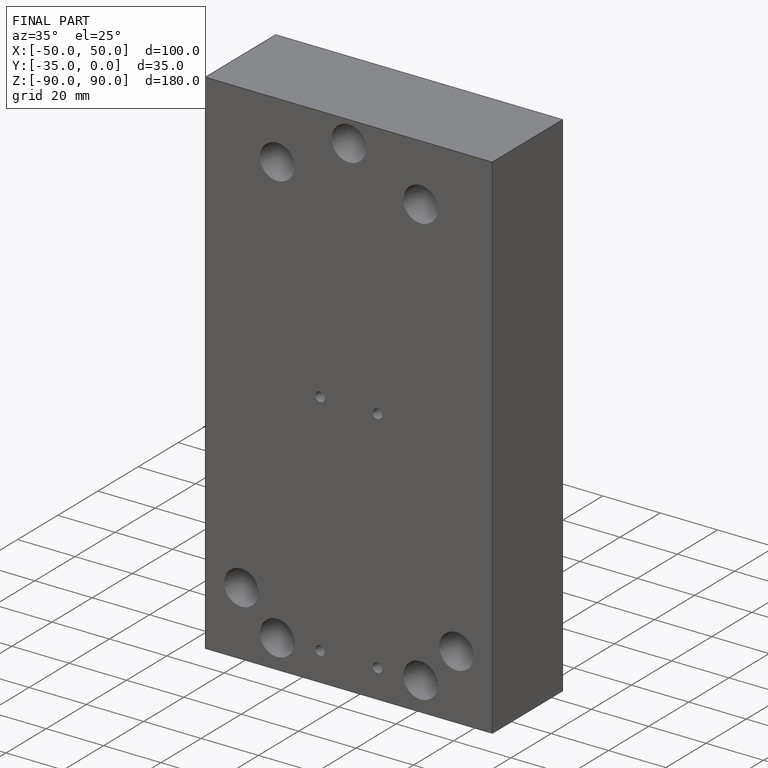
[diagram: finished part — iso view with bounding-box wireframe]
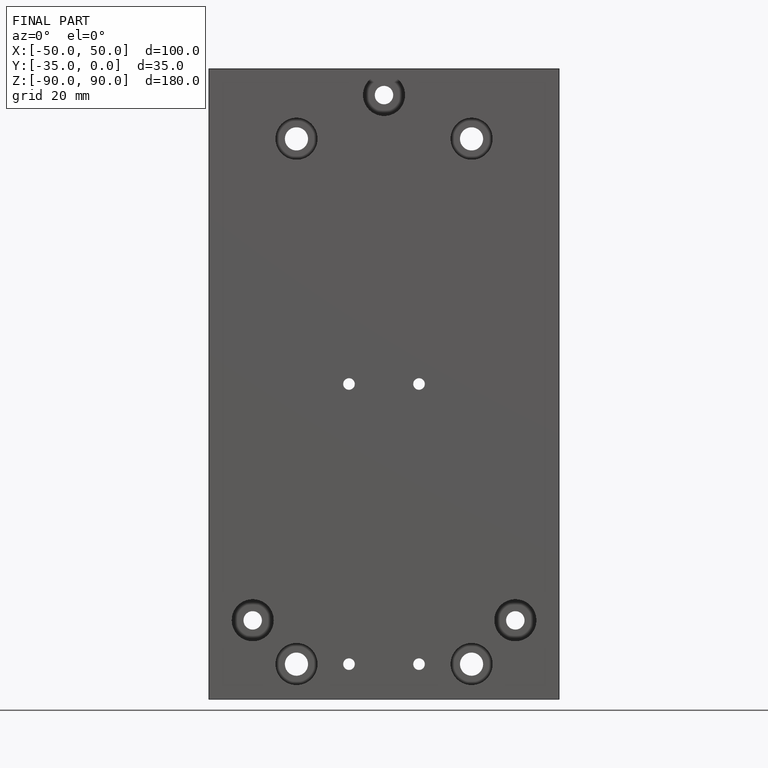
[diagram: finished part — front view with bounding-box wireframe]
